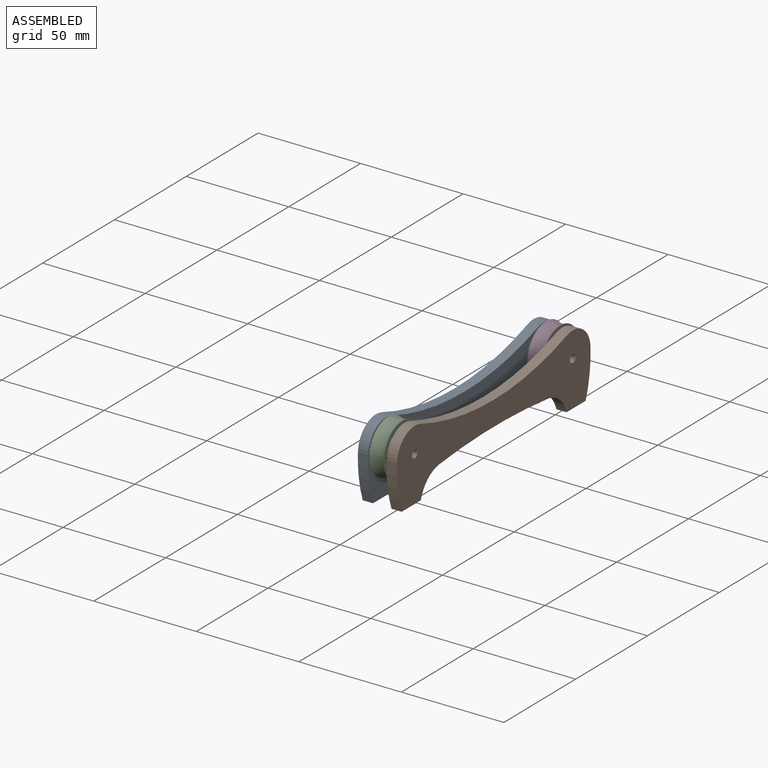
[diagram: assembled view]
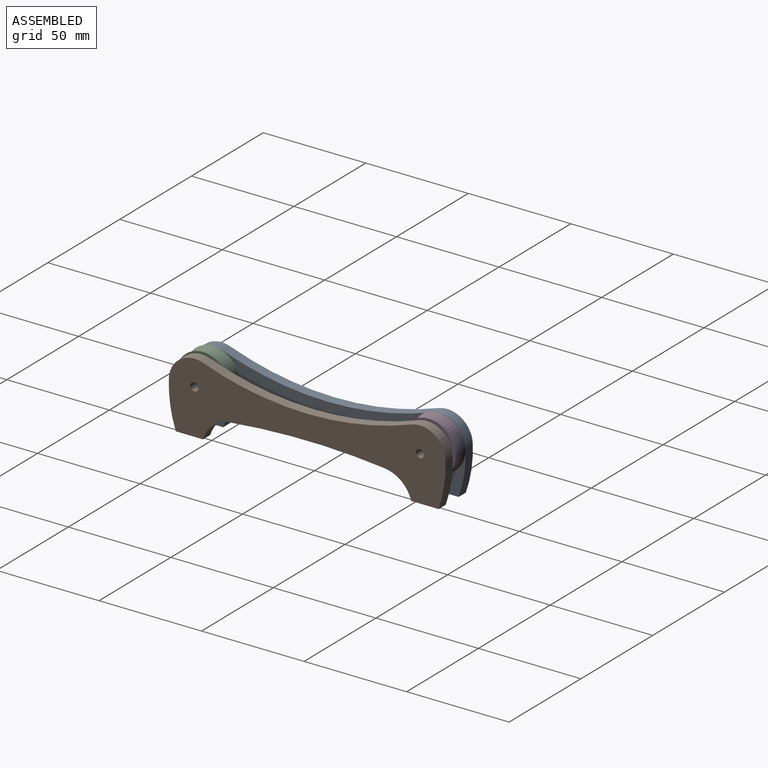
[diagram: assembled view, second angle]
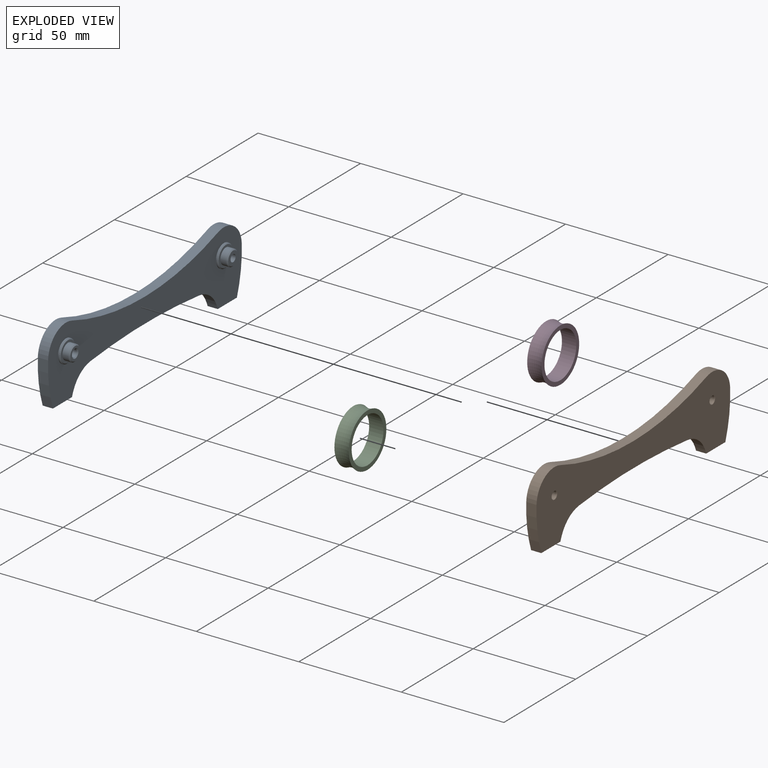
[diagram: exploded view]
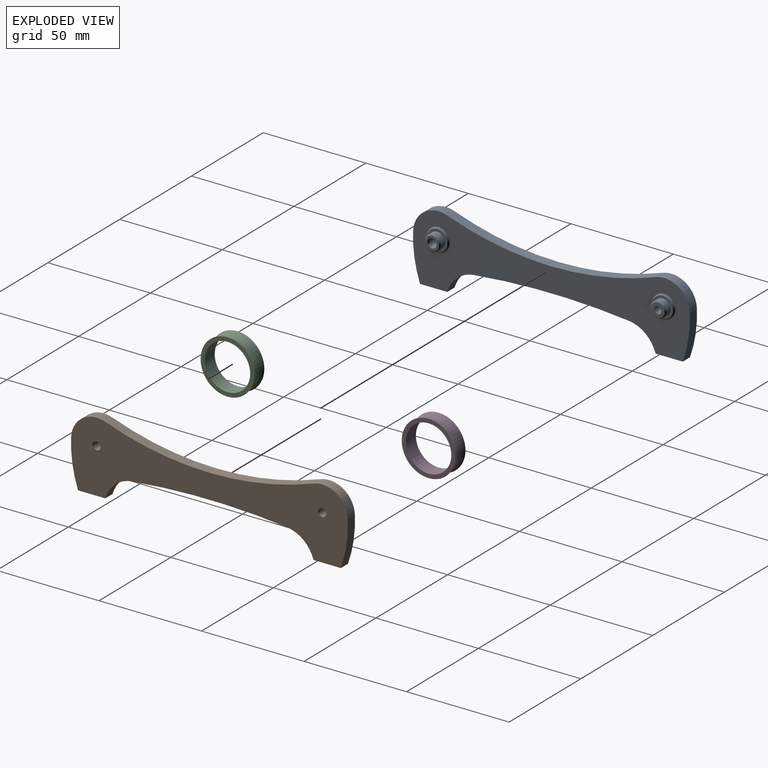
[diagram: exploded view, second angle]
ASSEMBLY  parts=4 mates=2
PART A: 31 faces, bbox 9.5x135x34.5 mm
  f0: plane 135x34.46mm, normal (-1,0,0), area 2535.9mm2, adj f1,f2,f3,f4,f5,f6,f7,f8
  f1: plane 13.28x5mm, normal (0,0,-1), area 66.4mm2, adj f0,f2,f11,f13
  f2: cylinder r=30mm len=5mm, axis (-1,0,0), area 11.1mm2, adj f0,f1,f13,f24
  f3: cylinder r=350mm len=75.71mm, axis (-1,0,0), area 379.3mm2, adj f0,f13,f24,f25
  f4: cylinder r=30mm len=5mm, axis (-1,0,0), area 11.1mm2, adj f0,f5,f13,f25
  f5: plane 13.28x5mm, normal (0,0,-1), area 66.4mm2, adj f0,f4,f6,f13
  f6: cylinder r=60mm len=22.52mm, axis (-1,0,0), area 114.6mm2, adj f0,f5,f7,f13
  f7: cylinder r=12.46mm len=16.66mm, axis (-1,0,0), area 116.7mm2, adj f0,f6,f8,f13
  f8: cylinder r=150mm len=101.56mm, axis (-1,0,0), area 518.1mm2, adj f0,f7,f9,f13
  f9: cylinder r=12.46mm len=16.66mm, axis (-1,0,0), area 116.7mm2, adj f0,f8,f11,f13
  f10: cylinder r=1.75mm len=9.3mm, axis (-1,0,0), area 102.3mm2, adj f21,f22
  f11: cylinder r=60mm len=22.52mm, axis (-1,0,0), area 114.6mm2, adj f0,f1,f9,f13
  f12: cylinder r=1.75mm len=8.8mm, axis (-1,0,0), area 96.8mm2, adj f23,f28
  f13: plane 135x34.46mm, normal (1,0,0), area 2702.1mm2, adj f1,f2,f3,f4,f5,f6,f7,f8
  f14: cylinder r=5.5mm len=11mm, axis (1,0,0), area 17.3mm2, adj f0,f27
  f15: plane 10x10mm, normal (-1,0,0), area 32mm2, adj f18,f27
  f16: cylinder r=5.5mm len=11mm, axis (1,0,0), area 17.3mm2, adj f0,f26
  f17: plane 10x10mm, normal (-1,0,0), area 32mm2, adj f20,f26
  f18: cylinder r=3.85mm len=7.7mm, axis (1,0,0), area 72.6mm2, adj f15,f29
  f19: plane 6.7x6.7mm, normal (-1,0,0), area 19.4mm2, adj f28,f29
  f20: cylinder r=3.85mm len=7.7mm, axis (1,0,0), area 72.6mm2, adj f17,f30
  f21: plane 6.7x6.7mm, normal (-1,0,0), area 25.6mm2, adj f10,f30
  f22: cone r=1.95mm half-angle=45deg, axis (1,0,0), area 3.3mm2, adj f10,f13
  f23: cone r=1.75mm half-angle=45deg, axis (1,0,0), area 3.3mm2, adj f12,f13
  f24: cylinder r=15mm len=12.11mm, axis (1,0,0), area 78.6mm2, adj f0,f2,f3,f13
  f25: cylinder r=15mm len=12.11mm, axis (1,0,0), area 78.6mm2, adj f0,f3,f4,f13
  f26: cone r=5mm half-angle=45deg, axis (1,0,0), area 23.3mm2, adj f16,f17
  f27: cone r=5.5mm half-angle=45deg, axis (1,0,0), area 23.3mm2, adj f14,f15
  f28: cone r=2.25mm half-angle=45deg, axis (-1,0,0), area 8.9mm2, adj f12,f19
  f29: cone r=3.85mm half-angle=45deg, axis (1,0,0), area 16mm2, adj f18,f19
  f30: cone r=3.35mm half-angle=45deg, axis (1,0,0), area 16mm2, adj f20,f21
PART B: same geometry as A
PART C: 4 faces, bbox 11.4x31.7x31.7 mm
  f0: torus R=20.36mm, axis (1,0,0), area 571.8mm2, adj f1,f3
  f1: plane 26.2x26.2mm, normal (-1,0,0), area 152.1mm2, adj f0,f2
  f2: cylinder r=11.1mm len=22.2mm, axis (1,0,0), area 488.2mm2, adj f1,f3
  f3: plane 26.2x26.2mm, normal (1,0,0), area 152.1mm2, adj f0,f2
PART D: same geometry as C
PLACE A rot(axis=(0,0,1),180deg) t=(-9,0,0)mm
PLACE B at identity fixed
PLACE C at identity
PLACE D t=(0,110,0)mm
MATE fastened A.f9 <-> B.f7  axis (1,0,0) through (-4.5,55,22)mm
MATE fastened D.f0 <-> B.f7  axis (1,0,0) through (-1,55,22)mm
